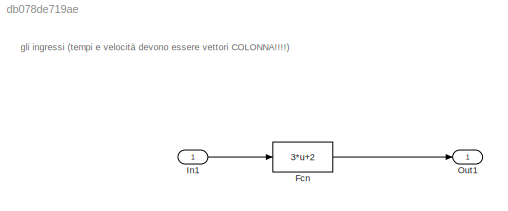
MODEL slx_db078de719ae
KIND model
CONFIG InitFcn = Es1_pagF3_variabili
CONFIG StopFcn = plot(tout,yout)
BLOCK [Fcn] Fcn
  Expr = 3*u+2
BLOCK [Inport] In1
  IconDisplay = Port number
BLOCK [Outport] Out1
  IconDisplay = Port number
ANNOTATION (root): gli ingressi (tempi e velocità devono essere vettori COLONNA!!!!)
LINE Fcn:1 -> Out1:1
LINE In1:1 -> Fcn:1
